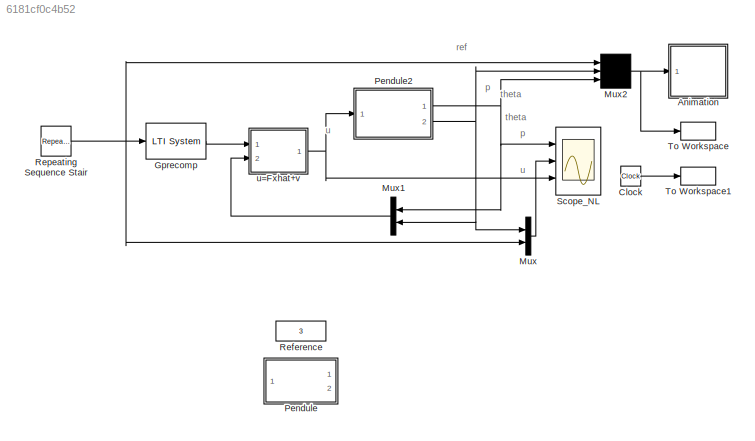
MODEL slx_6181cf0c4b52
KIND model
CONFIG AbsTol = 1e-6
CONFIG EnableMultiTasking = off
CONFIG FixedStep = .005
CONFIG MaxStep = 0.02
CONFIG MinStep = auto
CONFIG RelTol = 1e-3
CONFIG SampleTimeConstraint = Unconstrained
CONFIG Solver = ode5
CONFIG SolverName = ode5
CONFIG StartTime = 0
CONFIG StopTime = 36
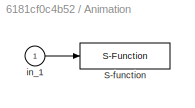
BLOCK [SubSystem] Animation
  Ports = [1]
  RequestExecContextInheritance = off
BLOCK [S-Function] Animation/S-function
  DeleteFcn = pendan([],[],[],'DeleteBlock');
  EnableBusSupport = off
  FunctionName = pendan_g
  Parameters = RefBlock
  Ports = [1]
  SFcnIsStateOwnerBlock = off
  SFunctionDeploymentMode = off
BLOCK [Inport] Animation/in_1
  IconDisplay = Port number
BLOCK [Clock] Clock
BLOCK [Reference] Gprecomp  REF=cstblocks/LTI System
  Ports = [1, 1]
  SourceBlock = cstblocks/LTI System
  SourceProductBaseCode = CT
  SourceProductName = Control System Toolbox
  SourceType = LTI Block
BLOCK [Mux] Mux
  DisplayOption = bar
  Inputs = 2
  Ports = [2, 1]
BLOCK [Mux] Mux1
  DisplayOption = bar
  Inputs = 2
  Ports = [2, 1]
BLOCK [Mux] Mux2
  Inputs = 3
  Ports = [3, 1]
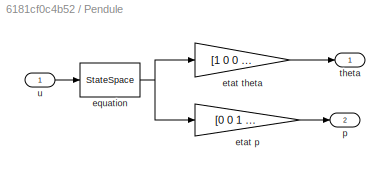
BLOCK [SubSystem] Pendule
  Ports = [1, 2]
  RequestExecContextInheritance = off
BLOCK [StateSpace] Pendule/equation
  A = A
  B = B
  C = eye(4)
  D = zeros(4,1)
  InitialCondition = x0
  Ports = [1, 1]
BLOCK [Gain] Pendule/etat p
  Gain = [0 0 1 0]
  Multiplication = Matrix(K*u)
BLOCK [Gain] Pendule/etat theta
  Gain = [1 0 0 0]
  Multiplication = Matrix(K*u)
BLOCK [Outport] Pendule/p
  IconDisplay = Port number
  Port = 2
BLOCK [Outport] Pendule/theta
  IconDisplay = Port number
BLOCK [Inport] Pendule/u
  IconDisplay = Port number
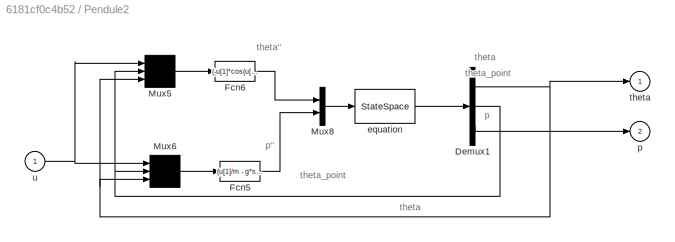
BLOCK [SubSystem] Pendule2
  Ports = [1, 2]
  RequestExecContextInheritance = off
BLOCK [Demux] Pendule2/Demux1
  Outputs = 3
  Ports = [1, 3]
BLOCK [Fcn] Pendule2/Fcn5
  Expr = (u[1]/m - g*sin(u[3])*cos(u[3]) + l*power(u[2],2)*sin(u[3]))/(M/m + power(sin(u[3]),2))
BLOCK [Fcn] Pendule2/Fcn6
  Expr = (-u[1]*cos(u[3])/m + (M+m)*g*sin(u[3])/m - l*power(u[2],2)*sin(u[3])*cos(u[3]))/(l*(M/m + power(sin(u[3]),2)))
BLOCK [Mux] Pendule2/Mux5
  Inputs = 3
  Ports = [3, 1]
BLOCK [Mux] Pendule2/Mux6
  Inputs = 3
  Ports = [3, 1]
BLOCK [Mux] Pendule2/Mux8
  DisplayOption = bar
  Inputs = 2
  Ports = [2, 1]
BLOCK [StateSpace] Pendule2/equation
  A = [ 0 1 0 0 ; 0 0 0 0 ; 0 0 0 1; 0 0 0 0]
  B = [0 0 ; 1 0 ; 0 0 ; 0 1]
  C = [1 0 0 0 ; 0 1 0 0 ; 0 0 1 0]
  D = zeros(3,2)
  InitialCondition = x0
  Ports = [1, 1]
BLOCK [Outport] Pendule2/p
  IconDisplay = Port number
  InitialOutput = 0
  Port = 2
BLOCK [Outport] Pendule2/theta
  IconDisplay = Port number
  InitialOutput = 0
BLOCK [Inport] Pendule2/u
  IconDisplay = Port number
BLOCK [Constant] Reference
  Value = 3
BLOCK [Reference] Repeating Sequence Stair  REF=simulink/Sources/Repeating
Sequence
Stair
  Ports = [0, 1]
  SourceBlock = simulink/Sources/Repeating\nSequence\nStair
  SourceProductBaseCode = SL
  SourceProductName = Simulink
  SourceType = Repeating Sequence Stair
BLOCK [Scope] Scope_NL
  Floating = off
  NumInputPorts = 3
  Ports = [3]
  ScopeSpecificationString = Simulink.scopes.TimeScopeBlockCfg('CurrentConfiguration', extmgr.ConfigurationSet(extmgr.Configuration('Core','General UI',true),extmgr.Configuration('Core','Source UI',true),extmgr.Configuration('Sources','WiredSimulink',true,'DataLogging',true,'DataLoggingVariableName','ys_NL','DataLoggingSaveFormat','StructureWithTime','DataLoggingDecimation','1','DataLoggingDecimateData',true),extmgr.Configura...<+3096ch>
BLOCK [ToWorkspace] To Workspace
  Ports = [1]
  SampleTime = 0.1
  VariableName = y
BLOCK [ToWorkspace] To Workspace1
  Ports = [1]
  SampleTime = 0.1
  VariableName = t
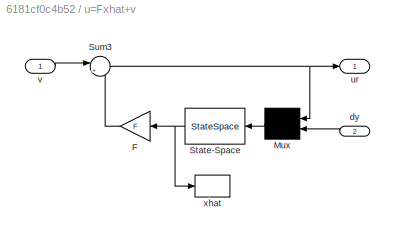
BLOCK [SubSystem] u=Fxhat+v
  Ports = [2, 1]
  RequestExecContextInheritance = off
BLOCK [Gain] u=Fxhat+v/F
  Gain = F
  Multiplication = Matrix(K*u)
BLOCK [Mux] u=Fxhat+v/Mux
  Inputs = 2
  Ports = [2, 1]
BLOCK [StateSpace] u=Fxhat+v/State-Space
  A = A-K1*C
  B = [B K1]
  C = eye(size(A,1))
  D = zeros(size(A,1),size([B K1],2))
  InitialCondition = 0
  Ports = [1, 1]
BLOCK [Sum] u=Fxhat+v/Sum3
  IconShape = round
  Inputs = |++
  Ports = [2, 1]
BLOCK [Inport] u=Fxhat+v/dy
  IconDisplay = Port number
  Port = 2
BLOCK [Outport] u=Fxhat+v/ur
  IconDisplay = Port number
BLOCK [Inport] u=Fxhat+v/v
  IconDisplay = Port number
BLOCK [ToWorkspace] u=Fxhat+v/xhat
  MaxDataPoints = inf
  Ports = [1]
  SampleTime = -1
  VariableName = xhat
ANNOTATION (root): p
ANNOTATION (root): ref
ANNOTATION (root): theta
ANNOTATION (root): u
ANNOTATION Pendule2: p
ANNOTATION Pendule2: p''
ANNOTATION Pendule2: theta
ANNOTATION Pendule2: theta''
ANNOTATION Pendule2: theta_point
LINE Animation/in_1:1 -> Animation/S-function:1
LINE Clock:1 -> To Workspace1:1
LINE Gprecomp:1 -> u=Fxhat+v:1
LINE Mux1:1 -> u=Fxhat+v:2
NET Mux2:1 -> Animation:1, To Workspace:1
LINE Mux:1 -> Scope_NL:2
NET Pendule/equation:1 -> Pendule/etat p:1, Pendule/etat theta:1
LINE Pendule/etat p:1 -> Pendule/p:1
LINE Pendule/etat theta:1 -> Pendule/theta:1
LINE Pendule/u:1 -> Pendule/equation:1
NET Pendule2/Demux1:1 -> Pendule2/Mux5:3, Pendule2/Mux6:3, Pendule2/theta:1
NET Pendule2/Demux1:2 -> Pendule2/Mux5:2, Pendule2/Mux6:2
LINE Pendule2/Demux1:3 -> Pendule2/p:1
LINE Pendule2/Fcn5:1 -> Pendule2/Mux8:2
LINE Pendule2/Fcn6:1 -> Pendule2/Mux8:1
LINE Pendule2/Mux5:1 -> Pendule2/Fcn6:1
LINE Pendule2/Mux6:1 -> Pendule2/Fcn5:1
LINE Pendule2/Mux8:1 -> Pendule2/equation:1
LINE Pendule2/equation:1 -> Pendule2/Demux1:1
NET Pendule2/u:1 -> Pendule2/Mux5:1, Pendule2/Mux6:1
NET Pendule2:1 -> Mux1:1, Mux2:3, Scope_NL:1
NET Pendule2:2 -> Mux1:2, Mux2:2, Mux:1
NET Repeating Sequence Stair:1 -> Gprecomp:1, Mux2:1, Mux:2
LINE u=Fxhat+v/F:1 -> u=Fxhat+v/Sum3:2
LINE u=Fxhat+v/Mux:1 -> u=Fxhat+v/State-Space:1
NET u=Fxhat+v/State-Space:1 -> u=Fxhat+v/F:1, u=Fxhat+v/xhat:1
NET u=Fxhat+v/Sum3:1 -> u=Fxhat+v/Mux:1, u=Fxhat+v/ur:1
LINE u=Fxhat+v/dy:1 -> u=Fxhat+v/Mux:2
LINE u=Fxhat+v/v:1 -> u=Fxhat+v/Sum3:1
NET u=Fxhat+v:1 -> Pendule2:1, Scope_NL:3
note: NET lines group one-source signal fan-out (src -> all destinations, sorted); 1:1 wires keep LINE
